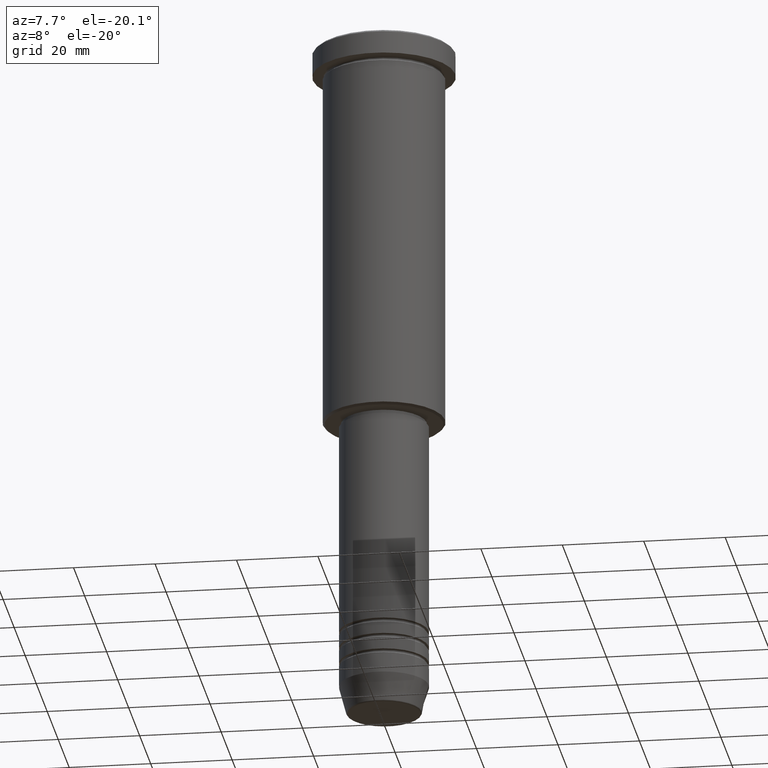
[diagram: clean part render]
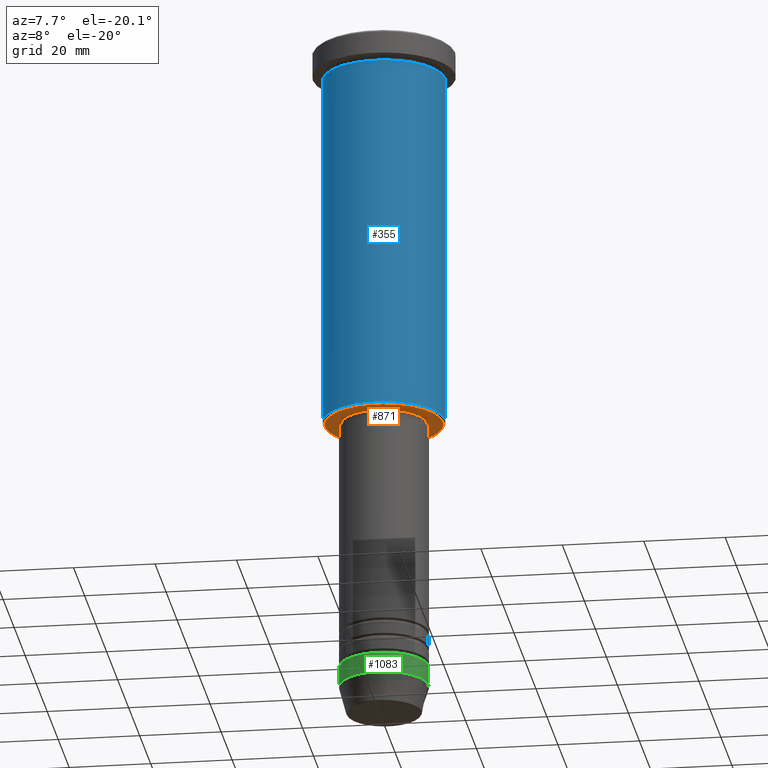
[diagram: same view with three faces highlighted in distinct colors, each labeled with its STEP entity id]
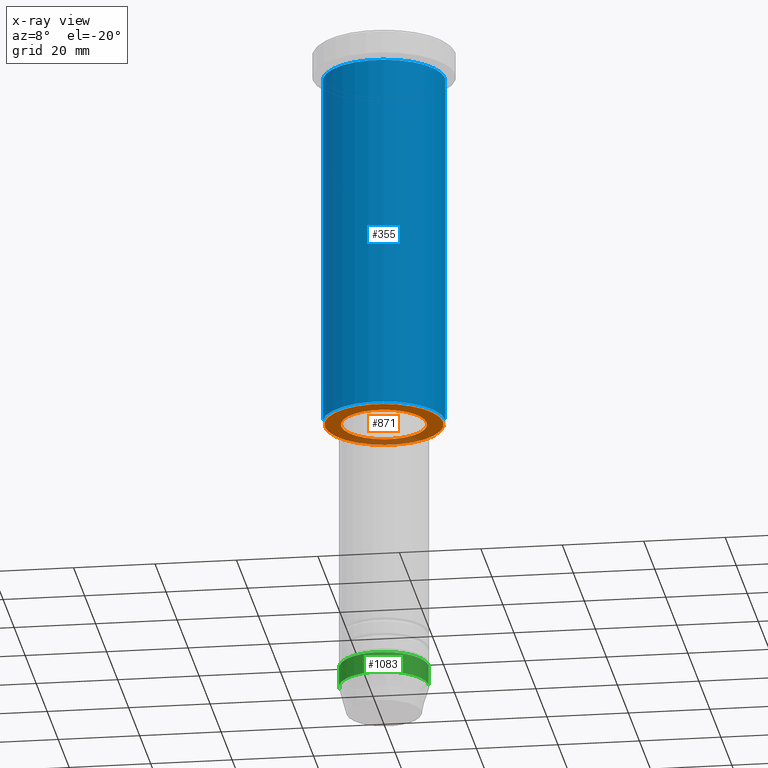
[diagram: x-ray of the same camera — body ghosted, the three highlighted faces saturated]
A machine part, auxiliary view with three faces highlighted in distinct colors.
The next image is the same camera in x-ray (body ghosted, the three faces saturated) — at least one of them is partly hidden behind the body in this view.
Their STEP definitions:

[orange] entity #871 — the highlighted planar face has unit normal (0, 0, -1).
#11 = DIRECTION ( 'NONE',  ( 0.000000000000000000, 0.000000000000000000, -1.000000000000000000 ) ) ;
#23 = ORIENTED_EDGE ( 'NONE', *, *, #670, .T. ) ;
#75 = CIRCLE ( 'NONE', #839, 14.49999999999996980 ) ;
#104 = VERTEX_POINT ( 'NONE', #212 ) ;
#105 = VERTEX_POINT ( 'NONE', #424 ) ;
#169 = CIRCLE ( 'NONE', #758, 10.49999999999999822 ) ;
#178 = DIRECTION ( 'NONE',  ( -0.000000000000000000, -0.000000000000000000, 1.000000000000000000 ) ) ;
#198 = FACE_BOUND ( 'NONE', #478, .T. ) ;
#212 = CARTESIAN_POINT ( 'NONE',  ( -14.49999999999996980, 1.806354028742344224E-15, -95.99999999999997158 ) ) ;
#234 = CARTESIAN_POINT ( 'NONE',  ( 0.000000000000000000, 0.000000000000000000, -95.99999999999997158 ) ) ;
#282 = EDGE_CURVE ( 'NONE', #973, #105, #321, .T. ) ;
#290 = CARTESIAN_POINT ( 'NONE',  ( 0.000000000000000000, 15.00000000000000000, -95.99999999999997158 ) ) ;
#296 = FACE_OUTER_BOUND ( 'NONE', #469, .T. ) ;
#321 = CIRCLE ( 'NONE', #653, 10.49999999999999822 ) ;
#344 = CARTESIAN_POINT ( 'NONE',  ( 0.000000000000000000, 0.000000000000000000, -95.99999999999997158 ) ) ;
#386 = DIRECTION ( 'NONE',  ( -1.000000000000000000, 0.000000000000000000, 0.000000000000000000 ) ) ;
#424 = CARTESIAN_POINT ( 'NONE',  ( -10.49999999999999822, 1.285879139104720633E-15, -95.99999999999997158 ) ) ;
#425 = DIRECTION ( 'NONE',  ( 0.000000000000000000, 0.000000000000000000, -1.000000000000000000 ) ) ;
#469 = EDGE_LOOP ( 'NONE', ( #573, #23 ) ) ;
#470 = CARTESIAN_POINT ( 'NONE',  ( 14.49999999999996980, 0.000000000000000000, -95.99999999999997158 ) ) ;
#478 = EDGE_LOOP ( 'NONE', ( #1105, #966 ) ) ;
#485 = EDGE_CURVE ( 'NONE', #105, #973, #169, .T. ) ;
#573 = ORIENTED_EDGE ( 'NONE', *, *, #928, .T. ) ;
#591 = DIRECTION ( 'NONE',  ( -0.000000000000000000, -0.000000000000000000, 1.000000000000000000 ) ) ;
#653 = AXIS2_PLACEMENT_3D ( 'NONE', #234, #591, #957 ) ;
#654 = AXIS2_PLACEMENT_3D ( 'NONE', #344, #425, #1143 ) ;
#657 = DIRECTION ( 'NONE',  ( 0.000000000000000000, 0.000000000000000000, -1.000000000000000000 ) ) ;
#670 = EDGE_CURVE ( 'NONE', #104, #865, #1004, .T. ) ;
#733 = AXIS2_PLACEMENT_3D ( 'NONE', #290, #657, #1010 ) ;
#758 = AXIS2_PLACEMENT_3D ( 'NONE', #995, #178, #820 ) ;
#776 = CARTESIAN_POINT ( 'NONE',  ( 10.49999999999999822, 0.000000000000000000, -95.99999999999997158 ) ) ;
#820 = DIRECTION ( 'NONE',  ( 1.000000000000000000, 0.000000000000000000, 0.000000000000000000 ) ) ;
#839 = AXIS2_PLACEMENT_3D ( 'NONE', #912, #11, #386 ) ;
#865 = VERTEX_POINT ( 'NONE', #470 ) ;
#871 = ADVANCED_FACE ( 'NONE', ( #296, #198 ), #1090, .T. ) ;
#912 = CARTESIAN_POINT ( 'NONE',  ( 0.000000000000000000, 0.000000000000000000, -95.99999999999997158 ) ) ;
#928 = EDGE_CURVE ( 'NONE', #865, #104, #75, .T. ) ;
#957 = DIRECTION ( 'NONE',  ( 1.000000000000000000, 0.000000000000000000, 0.000000000000000000 ) ) ;
#966 = ORIENTED_EDGE ( 'NONE', *, *, #485, .T. ) ;
#973 = VERTEX_POINT ( 'NONE', #776 ) ;
#995 = CARTESIAN_POINT ( 'NONE',  ( 0.000000000000000000, 0.000000000000000000, -95.99999999999997158 ) ) ;
#1004 = CIRCLE ( 'NONE', #654, 14.49999999999996980 ) ;
#1010 = DIRECTION ( 'NONE',  ( -1.000000000000000000, 0.000000000000000000, -0.000000000000000000 ) ) ;
#1090 = PLANE ( 'NONE',  #733 ) ;
#1105 = ORIENTED_EDGE ( 'NONE', *, *, #282, .T. ) ;
#1143 = DIRECTION ( 'NONE',  ( -1.000000000000000000, 0.000000000000000000, 0.000000000000000000 ) ) ;

[blue] entity #355 — the highlighted cylindrical surface (partial cylindrical patch) has radius 15 mm, axis along (-0, -0, 1).
#6 = DIRECTION ( 'NONE',  ( -1.000000000000000000, 0.000000000000000000, 0.000000000000000000 ) ) ;
#18 = CARTESIAN_POINT ( 'NONE',  ( 0.000000000000000000, 0.000000000000000000, -95.49999999999994316 ) ) ;
#70 = AXIS2_PLACEMENT_3D ( 'NONE', #497, #320, #1029 ) ;
#110 = VERTEX_POINT ( 'NONE', #1118 ) ;
#145 = EDGE_CURVE ( 'NONE', #895, #983, #1136, .T. ) ;
#172 = AXIS2_PLACEMENT_3D ( 'NONE', #195, #568, #996 ) ;
#195 = CARTESIAN_POINT ( 'NONE',  ( 0.000000000000000000, 0.000000000000000000, -6.999999999999995559 ) ) ;
#248 = AXIS2_PLACEMENT_3D ( 'NONE', #18, #1013, #6 ) ;
#320 = DIRECTION ( 'NONE',  ( -0.000000000000000000, -0.000000000000000000, 1.000000000000000000 ) ) ;
#326 = FACE_OUTER_BOUND ( 'NONE', #911, .T. ) ;
#330 = CARTESIAN_POINT ( 'NONE',  ( -15.00000000000000000, 1.836970198721029589E-15, 0.000000000000000000 ) ) ;
#331 = ORIENTED_EDGE ( 'NONE', *, *, #145, .F. ) ;
#340 = DIRECTION ( 'NONE',  ( -0.000000000000000000, -0.000000000000000000, 1.000000000000000000 ) ) ;
#355 = ADVANCED_FACE ( 'NONE', ( #326 ), #1140, .T. ) ;
#365 = VECTOR ( 'NONE', #695, 1000.000000000000000 ) ;
#367 = ORIENTED_EDGE ( 'NONE', *, *, #828, .T. ) ;
#429 = CARTESIAN_POINT ( 'NONE',  ( -15.00000000000000000, 1.836970198721029589E-15, -6.999999999999995559 ) ) ;
#497 = CARTESIAN_POINT ( 'NONE',  ( 0.000000000000000000, 0.000000000000000000, 0.000000000000000000 ) ) ;
#506 = VERTEX_POINT ( 'NONE', #644 ) ;
#518 = CARTESIAN_POINT ( 'NONE',  ( 15.00000000000000000, 0.000000000000000000, 0.000000000000000000 ) ) ;
#542 = VECTOR ( 'NONE', #340, 1000.000000000000000 ) ;
#568 = DIRECTION ( 'NONE',  ( -0.000000000000000000, -0.000000000000000000, 1.000000000000000000 ) ) ;
#644 = CARTESIAN_POINT ( 'NONE',  ( 15.00000000000000000, 0.000000000000000000, -95.49999999999994316 ) ) ;
#647 = ORIENTED_EDGE ( 'NONE', *, *, #1037, .T. ) ;
#695 = DIRECTION ( 'NONE',  ( -0.000000000000000000, -0.000000000000000000, 1.000000000000000000 ) ) ;
#753 = ORIENTED_EDGE ( 'NONE', *, *, #882, .F. ) ;
#828 = EDGE_CURVE ( 'NONE', #895, #506, #1114, .T. ) ;
#845 = LINE ( 'NONE', #518, #542 ) ;
#882 = EDGE_CURVE ( 'NONE', #983, #110, #939, .T. ) ;
#895 = VERTEX_POINT ( 'NONE', #919 ) ;
#911 = EDGE_LOOP ( 'NONE', ( #331, #367, #647, #753 ) ) ;
#919 = CARTESIAN_POINT ( 'NONE',  ( -15.00000000000000000, 1.836970198721029589E-15, -95.49999999999994316 ) ) ;
#939 = CIRCLE ( 'NONE', #172, 15.00000000000000000 ) ;
#983 = VERTEX_POINT ( 'NONE', #429 ) ;
#996 = DIRECTION ( 'NONE',  ( 1.000000000000000000, 0.000000000000000000, 0.000000000000000000 ) ) ;
#1013 = DIRECTION ( 'NONE',  ( -0.000000000000000000, -0.000000000000000000, 1.000000000000000000 ) ) ;
#1029 = DIRECTION ( 'NONE',  ( 1.000000000000000000, 0.000000000000000000, 0.000000000000000000 ) ) ;
#1037 = EDGE_CURVE ( 'NONE', #506, #110, #845, .T. ) ;
#1114 = CIRCLE ( 'NONE', #248, 15.00000000000000000 ) ;
#1118 = CARTESIAN_POINT ( 'NONE',  ( 15.00000000000000000, 0.000000000000000000, -6.999999999999995559 ) ) ;
#1136 = LINE ( 'NONE', #330, #365 ) ;
#1140 = CYLINDRICAL_SURFACE ( 'NONE', #70, 15.00000000000000000 ) ;

[green] entity #1083 — the highlighted cylindrical surface (partial cylindrical patch) has radius 11 mm, axis along (-0, -0, 1).
#16 = EDGE_CURVE ( 'NONE', #1162, #596, #587, .T. ) ;
#28 = AXIS2_PLACEMENT_3D ( 'NONE', #932, #102, #477 ) ;
#41 = DIRECTION ( 'NONE',  ( -0.000000000000000000, -0.000000000000000000, 1.000000000000000000 ) ) ;
#60 = CARTESIAN_POINT ( 'NONE',  ( -11.00000000000000000, 1.347111479062088405E-15, -158.9999999999999716 ) ) ;
#61 = ORIENTED_EDGE ( 'NONE', *, *, #936, .F. ) ;
#102 = DIRECTION ( 'NONE',  ( -0.000000000000000000, -0.000000000000000000, 1.000000000000000000 ) ) ;
#117 = LINE ( 'NONE', #491, #287 ) ;
#134 = CARTESIAN_POINT ( 'NONE',  ( 11.00000000000000000, 0.000000000000000000, -158.9999999999999716 ) ) ;
#163 = ORIENTED_EDGE ( 'NONE', *, *, #935, .T. ) ;
#211 = DIRECTION ( 'NONE',  ( 1.000000000000000000, 0.000000000000000000, 0.000000000000000000 ) ) ;
#287 = VECTOR ( 'NONE', #855, 1000.000000000000000 ) ;
#301 = ORIENTED_EDGE ( 'NONE', *, *, #440, .F. ) ;
#391 = CYLINDRICAL_SURFACE ( 'NONE', #637, 11.00000000000000000 ) ;
#440 = EDGE_CURVE ( 'NONE', #1100, #738, #117, .T. ) ;
#465 = CIRCLE ( 'NONE', #28, 11.00000000000000000 ) ;
#477 = DIRECTION ( 'NONE',  ( 1.000000000000000000, 0.000000000000000000, 0.000000000000000000 ) ) ;
#491 = CARTESIAN_POINT ( 'NONE',  ( -11.00000000000000000, 1.347111479062088405E-15, 0.000000000000000000 ) ) ;
#577 = DIRECTION ( 'NONE',  ( 1.000000000000000000, 0.000000000000000000, 0.000000000000000000 ) ) ;
#587 = LINE ( 'NONE', #863, #690 ) ;
#596 = VERTEX_POINT ( 'NONE', #134 ) ;
#629 = CARTESIAN_POINT ( 'NONE',  ( 11.00000000000000000, 0.000000000000000000, -163.9999999999999716 ) ) ;
#637 = AXIS2_PLACEMENT_3D ( 'NONE', #867, #41, #211 ) ;
#690 = VECTOR ( 'NONE', #849, 1000.000000000000000 ) ;
#738 = VERTEX_POINT ( 'NONE', #60 ) ;
#779 = AXIS2_PLACEMENT_3D ( 'NONE', #842, #971, #577 ) ;
#782 = EDGE_LOOP ( 'NONE', ( #301, #163, #1116, #61 ) ) ;
#825 = CIRCLE ( 'NONE', #779, 11.00000000000000000 ) ;
#842 = CARTESIAN_POINT ( 'NONE',  ( 0.000000000000000000, 0.000000000000000000, -158.9999999999999716 ) ) ;
#849 = DIRECTION ( 'NONE',  ( -0.000000000000000000, -0.000000000000000000, 1.000000000000000000 ) ) ;
#855 = DIRECTION ( 'NONE',  ( -0.000000000000000000, -0.000000000000000000, 1.000000000000000000 ) ) ;
#863 = CARTESIAN_POINT ( 'NONE',  ( 11.00000000000000000, 0.000000000000000000, 0.000000000000000000 ) ) ;
#867 = CARTESIAN_POINT ( 'NONE',  ( 0.000000000000000000, 0.000000000000000000, 0.000000000000000000 ) ) ;
#889 = FACE_OUTER_BOUND ( 'NONE', #782, .T. ) ;
#910 = CARTESIAN_POINT ( 'NONE',  ( -11.00000000000000000, 1.347111479062088405E-15, -163.9999999999999716 ) ) ;
#932 = CARTESIAN_POINT ( 'NONE',  ( 0.000000000000000000, 0.000000000000000000, -163.9999999999999716 ) ) ;
#935 = EDGE_CURVE ( 'NONE', #1100, #1162, #465, .T. ) ;
#936 = EDGE_CURVE ( 'NONE', #738, #596, #825, .T. ) ;
#971 = DIRECTION ( 'NONE',  ( -0.000000000000000000, -0.000000000000000000, 1.000000000000000000 ) ) ;
#1083 = ADVANCED_FACE ( 'NONE', ( #889 ), #391, .T. ) ;
#1100 = VERTEX_POINT ( 'NONE', #910 ) ;
#1116 = ORIENTED_EDGE ( 'NONE', *, *, #16, .T. ) ;
#1162 = VERTEX_POINT ( 'NONE', #629 ) ;